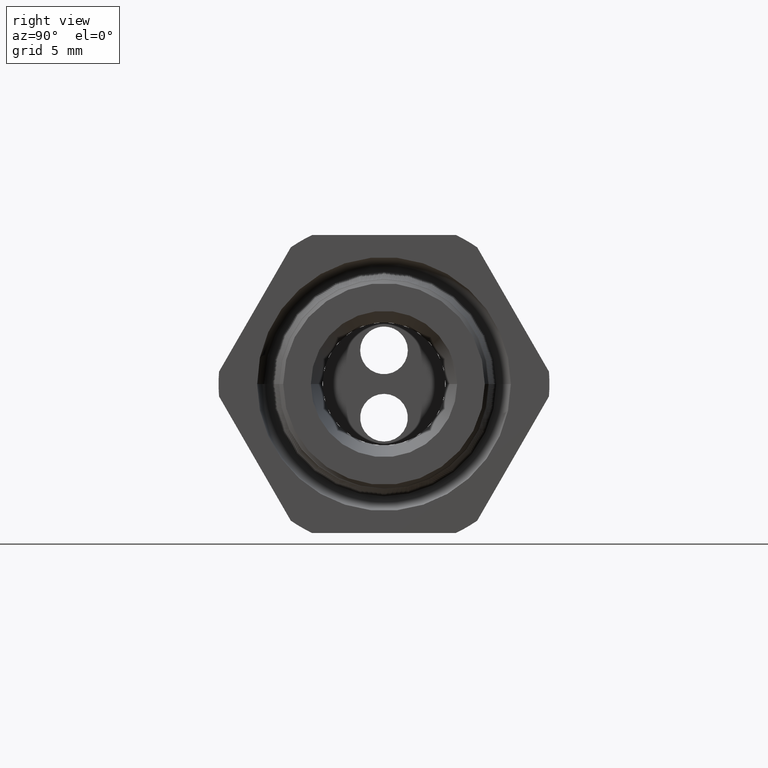
[diagram: clean part render]
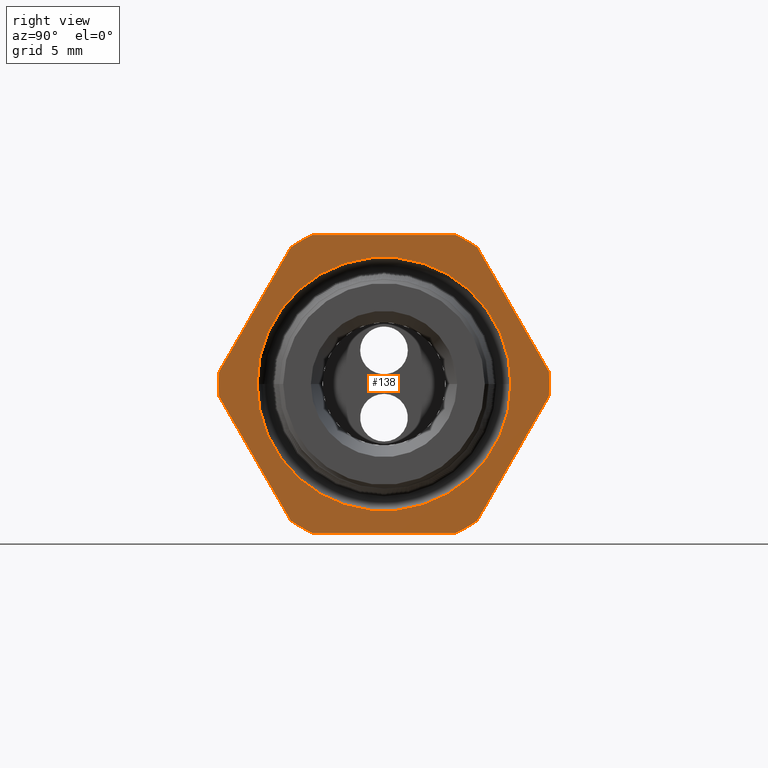
[diagram: same view with one face highlighted and labeled with its STEP entity id]
A machine part, right view. The second image highlights one B-rep face of the part: STEP entity #138.
In plain terms, the highlighted planar face has unit normal (1, -0, -0).
Its self-contained STEP definition (entity closure, byte-faithful):
#128 = VERTEX_POINT ( 'NONE', #2049 ) ;
#134 = EDGE_LOOP ( 'NONE', ( #135, #139 ) ) ;
#135 = ORIENTED_EDGE ( 'NONE', *, *, #140, .F. ) ;
#137 = EDGE_LOOP ( 'NONE', ( #279, #153, #150, #148, #145, #290, #287, #284, #280, #277, #304, #299 ) ) ;
#138 = ADVANCED_FACE ( 'NONE', ( #2089, #2088 ), #2087, .T. ) ;
#139 = ORIENTED_EDGE ( 'NONE', *, *, #769, .F. ) ;
#140 = EDGE_CURVE ( 'NONE', #770, #767, #2084, .T. ) ;
#145 = ORIENTED_EDGE ( 'NONE', *, *, #166, .T. ) ;
#146 = VERTEX_POINT ( 'NONE', #2065 ) ;
#147 = EDGE_CURVE ( 'NONE', #149, #146, #2064, .T. ) ;
#148 = ORIENTED_EDGE ( 'NONE', *, *, #147, .T. ) ;
#149 = VERTEX_POINT ( 'NONE', #2126 ) ;
#150 = ORIENTED_EDGE ( 'NONE', *, *, #164, .T. ) ;
#151 = VERTEX_POINT ( 'NONE', #2125 ) ;
#152 = VERTEX_POINT ( 'NONE', #2124 ) ;
#153 = ORIENTED_EDGE ( 'NONE', *, *, #165, .T. ) ;
#154 = VERTEX_POINT ( 'NONE', #2123 ) ;
#164 = EDGE_CURVE ( 'NONE', #151, #149, #2122, .T. ) ;
#165 = EDGE_CURVE ( 'NONE', #152, #151, #2118, .T. ) ;
#166 = EDGE_CURVE ( 'NONE', #146, #128, #2113, .T. ) ;
#275 = VERTEX_POINT ( 'NONE', #2269 ) ;
#276 = VERTEX_POINT ( 'NONE', #2265 ) ;
#277 = ORIENTED_EDGE ( 'NONE', *, *, #307, .T. ) ;
#278 = EDGE_CURVE ( 'NONE', #154, #152, #2264, .T. ) ;
#279 = ORIENTED_EDGE ( 'NONE', *, *, #278, .T. ) ;
#280 = ORIENTED_EDGE ( 'NONE', *, *, #283, .T. ) ;
#281 = VERTEX_POINT ( 'NONE', #2260 ) ;
#282 = EDGE_CURVE ( 'NONE', #286, #281, #2258, .T. ) ;
#283 = EDGE_CURVE ( 'NONE', #281, #275, #2253, .T. ) ;
#284 = ORIENTED_EDGE ( 'NONE', *, *, #282, .T. ) ;
#285 = EDGE_CURVE ( 'NONE', #289, #286, #2312, .T. ) ;
#286 = VERTEX_POINT ( 'NONE', #2308 ) ;
#287 = ORIENTED_EDGE ( 'NONE', *, *, #285, .T. ) ;
#289 = VERTEX_POINT ( 'NONE', #2307 ) ;
#290 = ORIENTED_EDGE ( 'NONE', *, *, #291, .T. ) ;
#291 = EDGE_CURVE ( 'NONE', #128, #289, #2306, .T. ) ;
#299 = ORIENTED_EDGE ( 'NONE', *, *, #301, .T. ) ;
#300 = VERTEX_POINT ( 'NONE', #2293 ) ;
#301 = EDGE_CURVE ( 'NONE', #300, #154, #2289, .T. ) ;
#302 = EDGE_CURVE ( 'NONE', #276, #300, #2345, .T. ) ;
#304 = ORIENTED_EDGE ( 'NONE', *, *, #302, .T. ) ;
#307 = EDGE_CURVE ( 'NONE', #275, #276, #2334, .T. ) ;
#767 = VERTEX_POINT ( 'NONE', #3090 ) ;
#769 = EDGE_CURVE ( 'NONE', #767, #770, #3089, .T. ) ;
#770 = VERTEX_POINT ( 'NONE', #3147 ) ;
#2049 = CARTESIAN_POINT ( 'NONE',  ( -0.3100000000000000000, -0.1806628420566886700, 0.3749999999999999400 ) ) ;
#2061 = DIRECTION ( 'NONE',  ( 1.000000000000000000, -3.234525066229925200E-018, -0.0000000000000000000 ) ) ;
#2062 = CARTESIAN_POINT ( 'NONE',  ( -0.3100000000000000000, 3.460177759826753200E-018, 0.0000000000000000000 ) ) ;
#2063 = AXIS2_PLACEMENT_3D ( 'NONE', #2062, #2061, #2127 ) ;
#2064 = CIRCLE ( 'NONE', #2063, 0.4162500000000000100 ) ;
#2065 = CARTESIAN_POINT ( 'NONE',  ( -0.3100000000000000000, 0.1806628420566886700, 0.3749999999999999400 ) ) ;
#2078 = DIRECTION ( 'NONE',  ( 0.0000000000000000000, 1.000000000000000000, 0.0000000000000000000 ) ) ;
#2079 = DIRECTION ( 'NONE',  ( 1.000000000000000000, -3.234525066229925200E-018, -0.0000000000000000000 ) ) ;
#2080 = CARTESIAN_POINT ( 'NONE',  ( -0.3100000000000000000, 1.617262533114968100E-020, 0.0000000000000000000 ) ) ;
#2081 = AXIS2_PLACEMENT_3D ( 'NONE', #2080, #2079, #2078 ) ;
#2082 = DIRECTION ( 'NONE',  ( 3.234525066229925200E-018, 1.000000000000000000, 0.0000000000000000000 ) ) ;
#2083 = DIRECTION ( 'NONE',  ( 1.000000000000000000, -3.234525066229925200E-018, -0.0000000000000000000 ) ) ;
#2084 = CIRCLE ( 'NONE', #2081, 0.3192456312392315000 ) ;
#2085 = CARTESIAN_POINT ( 'NONE',  ( -0.3100000000000000000, 0.7500000000000002200, 0.0000000000000000000 ) ) ;
#2086 = AXIS2_PLACEMENT_3D ( 'NONE', #2085, #2083, #2082 ) ;
#2087 = PLANE ( 'NONE',  #2086 ) ;
#2088 = FACE_OUTER_BOUND ( 'NONE', #137, .T. ) ;
#2089 = FACE_BOUND ( 'NONE', #134, .T. ) ;
#2110 = DIRECTION ( 'NONE',  ( -3.234525066229925200E-018, -1.000000000000000000, 0.0000000000000000000 ) ) ;
#2111 = VECTOR ( 'NONE', #2110, 39.37007874015748100 ) ;
#2112 = CARTESIAN_POINT ( 'NONE',  ( -0.3100000000000000000, 0.7500000000000002200, 0.3749999999999999400 ) ) ;
#2113 = LINE ( 'NONE', #2112, #2111 ) ;
#2114 = DIRECTION ( 'NONE',  ( 0.0000000000000000000, 1.000000000000000000, 0.0000000000000000000 ) ) ;
#2115 = DIRECTION ( 'NONE',  ( 1.000000000000000000, -3.234525066229925200E-018, -0.0000000000000000000 ) ) ;
#2116 = CARTESIAN_POINT ( 'NONE',  ( -0.3100000000000000000, 3.460177759826753200E-018, 0.0000000000000000000 ) ) ;
#2117 = AXIS2_PLACEMENT_3D ( 'NONE', #2116, #2115, #2114 ) ;
#2118 = CIRCLE ( 'NONE', #2117, 0.4162500000000000100 ) ;
#2119 = DIRECTION ( 'NONE',  ( -1.617262533114962600E-018, -0.5000000000000000000, 0.8660254037844386000 ) ) ;
#2120 = VECTOR ( 'NONE', #2119, 39.37007874015748900 ) ;
#2121 = CARTESIAN_POINT ( 'NONE',  ( -0.3100000000000000000, 0.5122595264191646100, -0.1372595264191645300 ) ) ;
#2122 = LINE ( 'NONE', #2121, #2120 ) ;
#2123 = CARTESIAN_POINT ( 'NONE',  ( -0.3100000000000000000, 0.2344281053908202900, -0.3439586107409879900 ) ) ;
#2124 = CARTESIAN_POINT ( 'NONE',  ( -0.3100000000000000000, 0.4150909474475087400, -0.03104138925901209900 ) ) ;
#2125 = CARTESIAN_POINT ( 'NONE',  ( -0.3100000000000000000, 0.4150909474475088000, 0.03104138925901233800 ) ) ;
#2126 = CARTESIAN_POINT ( 'NONE',  ( -0.3100000000000000000, 0.2344281053908204600, 0.3439586107409878200 ) ) ;
#2127 = DIRECTION ( 'NONE',  ( 0.0000000000000000000, 1.000000000000000000, 0.0000000000000000000 ) ) ;
#2253 = LINE ( 'NONE', #2259, #2314 ) ;
#2254 = DIRECTION ( 'NONE',  ( 0.0000000000000000000, 1.000000000000000000, 0.0000000000000000000 ) ) ;
#2255 = DIRECTION ( 'NONE',  ( 1.000000000000000000, -3.234525066229925200E-018, -0.0000000000000000000 ) ) ;
#2256 = CARTESIAN_POINT ( 'NONE',  ( -0.3100000000000000000, 3.460177759826753200E-018, 0.0000000000000000000 ) ) ;
#2257 = AXIS2_PLACEMENT_3D ( 'NONE', #2256, #2255, #2254 ) ;
#2258 = CIRCLE ( 'NONE', #2257, 0.4162500000000001200 ) ;
#2259 = CARTESIAN_POINT ( 'NONE',  ( -0.3100000000000000000, -0.1372595264191644200, -0.5122595264191646100 ) ) ;
#2260 = CARTESIAN_POINT ( 'NONE',  ( -0.3100000000000000000, -0.4150909474475088000, -0.03104138925901222700 ) ) ;
#2261 = DIRECTION ( 'NONE',  ( 1.617262533114962400E-018, 0.4999999999999998900, 0.8660254037844386000 ) ) ;
#2262 = VECTOR ( 'NONE', #2261, 39.37007874015748900 ) ;
#2263 = CARTESIAN_POINT ( 'NONE',  ( -0.3100000000000000000, 0.5122595264191645000, 0.1372595264191645600 ) ) ;
#2264 = LINE ( 'NONE', #2263, #2262 ) ;
#2265 = CARTESIAN_POINT ( 'NONE',  ( -0.3100000000000000000, -0.1806628420566883900, -0.3750000000000001100 ) ) ;
#2269 = CARTESIAN_POINT ( 'NONE',  ( -0.3100000000000000000, -0.2344281053908202100, -0.3439586107409880500 ) ) ;
#2285 = DIRECTION ( 'NONE',  ( 0.0000000000000000000, 1.000000000000000000, 0.0000000000000000000 ) ) ;
#2286 = DIRECTION ( 'NONE',  ( 1.000000000000000000, -3.234525066229925200E-018, -0.0000000000000000000 ) ) ;
#2287 = CARTESIAN_POINT ( 'NONE',  ( -0.3100000000000000000, 3.460177759826753200E-018, 0.0000000000000000000 ) ) ;
#2288 = AXIS2_PLACEMENT_3D ( 'NONE', #2287, #2286, #2285 ) ;
#2289 = CIRCLE ( 'NONE', #2288, 0.4162500000000000100 ) ;
#2293 = CARTESIAN_POINT ( 'NONE',  ( -0.3100000000000000000, 0.1806628420566884800, -0.3750000000000001100 ) ) ;
#2302 = DIRECTION ( 'NONE',  ( 0.0000000000000000000, 1.000000000000000000, 0.0000000000000000000 ) ) ;
#2303 = DIRECTION ( 'NONE',  ( 1.000000000000000000, -3.234525066229925200E-018, -0.0000000000000000000 ) ) ;
#2304 = CARTESIAN_POINT ( 'NONE',  ( -0.3100000000000000000, 3.460177759826753200E-018, 0.0000000000000000000 ) ) ;
#2305 = AXIS2_PLACEMENT_3D ( 'NONE', #2304, #2303, #2302 ) ;
#2306 = CIRCLE ( 'NONE', #2305, 0.4162500000000000100 ) ;
#2307 = CARTESIAN_POINT ( 'NONE',  ( -0.3100000000000000000, -0.2344281053908204800, 0.3439586107409878200 ) ) ;
#2308 = CARTESIAN_POINT ( 'NONE',  ( -0.3100000000000000000, -0.4150909474475088500, 0.03104138925901205700 ) ) ;
#2309 = DIRECTION ( 'NONE',  ( -1.617262533114961600E-018, -0.4999999999999998300, -0.8660254037844388200 ) ) ;
#2310 = VECTOR ( 'NONE', #2309, 39.37007874015748100 ) ;
#2311 = CARTESIAN_POINT ( 'NONE',  ( -0.3100000000000000000, -0.1372595264191647000, 0.5122595264191645000 ) ) ;
#2312 = LINE ( 'NONE', #2311, #2310 ) ;
#2313 = DIRECTION ( 'NONE',  ( 1.617262533114962600E-018, 0.5000000000000000000, -0.8660254037844386000 ) ) ;
#2314 = VECTOR ( 'NONE', #2313, 39.37007874015748900 ) ;
#2331 = DIRECTION ( 'NONE',  ( 0.0000000000000000000, 1.000000000000000000, 0.0000000000000000000 ) ) ;
#2332 = DIRECTION ( 'NONE',  ( 1.000000000000000000, -3.234525066229925200E-018, -0.0000000000000000000 ) ) ;
#2333 = AXIS2_PLACEMENT_3D ( 'NONE', #2340, #2332, #2331 ) ;
#2334 = CIRCLE ( 'NONE', #2333, 0.4162500000000000100 ) ;
#2340 = CARTESIAN_POINT ( 'NONE',  ( -0.3100000000000000000, 3.460177759826753200E-018, 0.0000000000000000000 ) ) ;
#2342 = DIRECTION ( 'NONE',  ( 3.234525066229925200E-018, 1.000000000000000000, 0.0000000000000000000 ) ) ;
#2343 = VECTOR ( 'NONE', #2342, 39.37007874015748100 ) ;
#2344 = CARTESIAN_POINT ( 'NONE',  ( -0.3100000000000000000, 0.7500000000000002200, -0.3750000000000001100 ) ) ;
#2345 = LINE ( 'NONE', #2344, #2343 ) ;
#3086 = DIRECTION ( 'NONE',  ( 1.000000000000000000, -3.234525066229925200E-018, -0.0000000000000000000 ) ) ;
#3087 = CARTESIAN_POINT ( 'NONE',  ( -0.3100000000000000000, 1.617262533114968100E-020, 0.0000000000000000000 ) ) ;
#3088 = AXIS2_PLACEMENT_3D ( 'NONE', #3087, #3086, #3148 ) ;
#3089 = CIRCLE ( 'NONE', #3088, 0.3192456312392315000 ) ;
#3090 = CARTESIAN_POINT ( 'NONE',  ( -0.3100000000000000000, -0.3192456312392315000, 3.909502284455984900E-017 ) ) ;
#3147 = CARTESIAN_POINT ( 'NONE',  ( -0.3100000000000000000, 0.3192456312392315000, 0.0000000000000000000 ) ) ;
#3148 = DIRECTION ( 'NONE',  ( 0.0000000000000000000, 1.000000000000000000, 0.0000000000000000000 ) ) ;